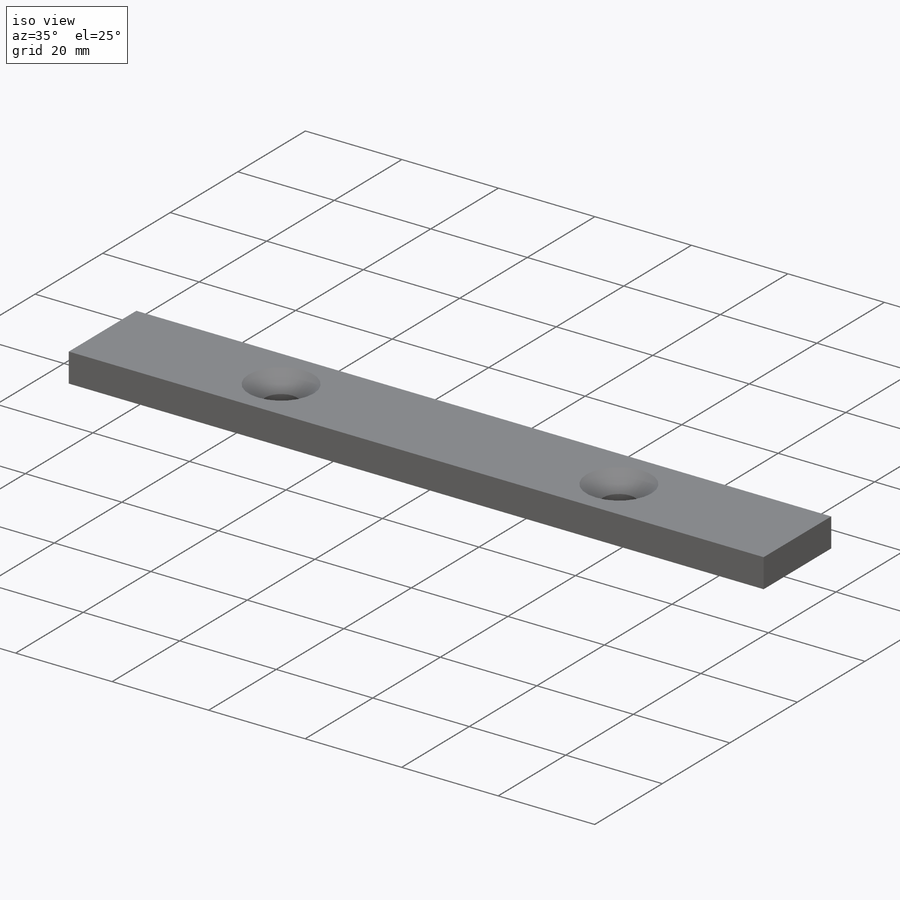
[diagram: iso view]
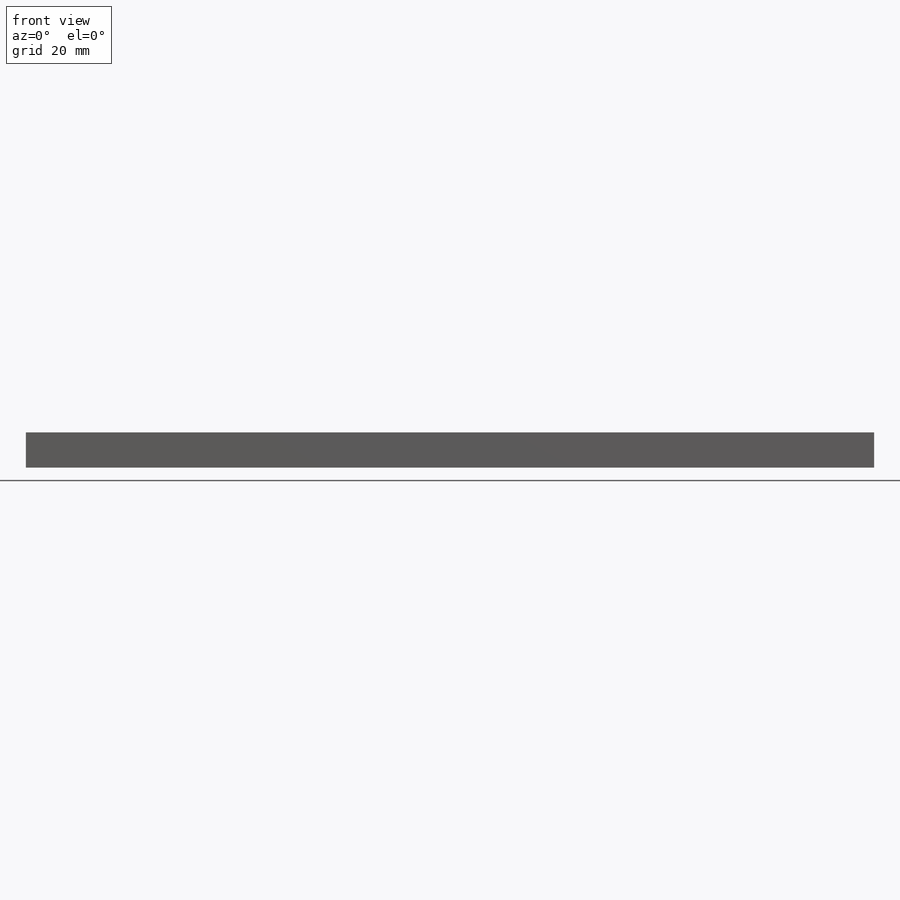
[diagram: front view]
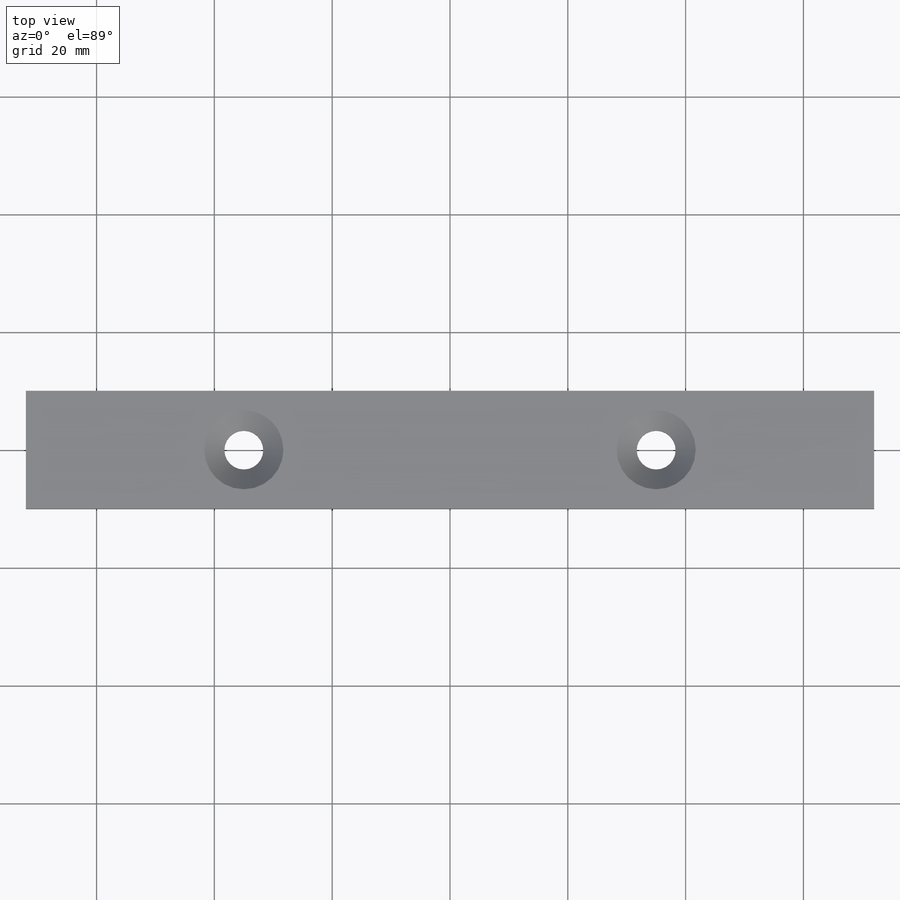
[diagram: top view]
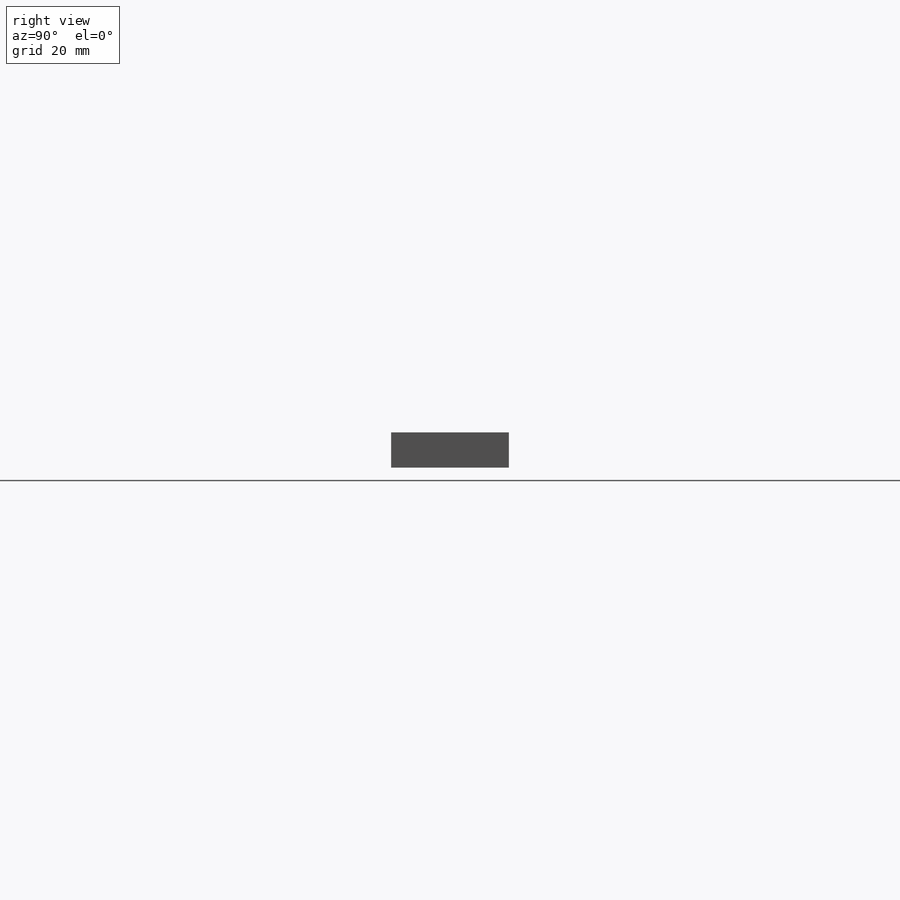
[diagram: right view]
SOLIDWORKS PART (.sldprt)
format: sldprt  version: not decoded by parser v0  size: 164,352 bytes
history: native  units: mm
features: sketch x3, material x1, extrude x1, hole x1 (+15 scaffold rows collapsed)
feature tree (21):
  scaffold x15  (default folders/planes/origin — collapsed)
  material  "AISI 1020"
  sketch  "Sketch1"  dims[c1.D1=144.0mm c1.D2=20.0mm c2.D1=144.0mm c2.D3=72.0mm]
  extrude  "Extrude1"  Depth=6mm
  hole  "Escareado para SFHCS M61"  Diameter=6.6mm Depth=6mm
  sketch  "Esboço2"  dims[c1.D1=35.0mm c1.D2=35.0mm c2.D1=70.0mm c2.D2=35.0mm]
  sketch  "Esboço1"  dims[hole-wizard template sketch: 55 standard entries collapsed; hole parameters kept: c17.Thru Hole Depth=6.0mm c17.Near C'Sink Dia.=13.44mm c17.D4=~3.666174mm c17.Near C'Sink Angle=90.0deg]
decode coverage: 5 of 5 modeling features carry decoded parameters
note: ~ marks probable driven/reference dimensions
note: suppression state not decoded; provenance and decode notes live in map.json
